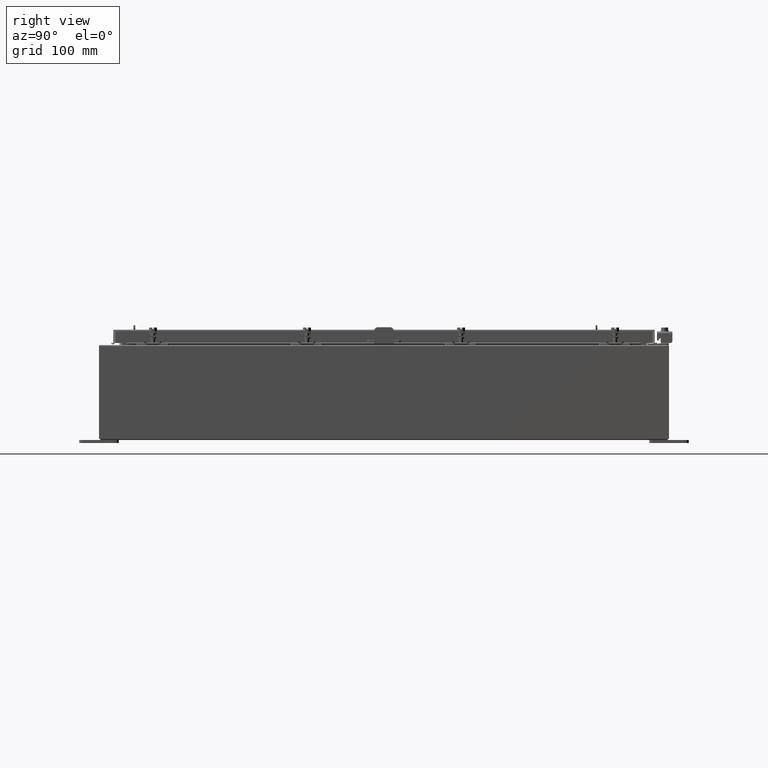
[diagram: clean part render]
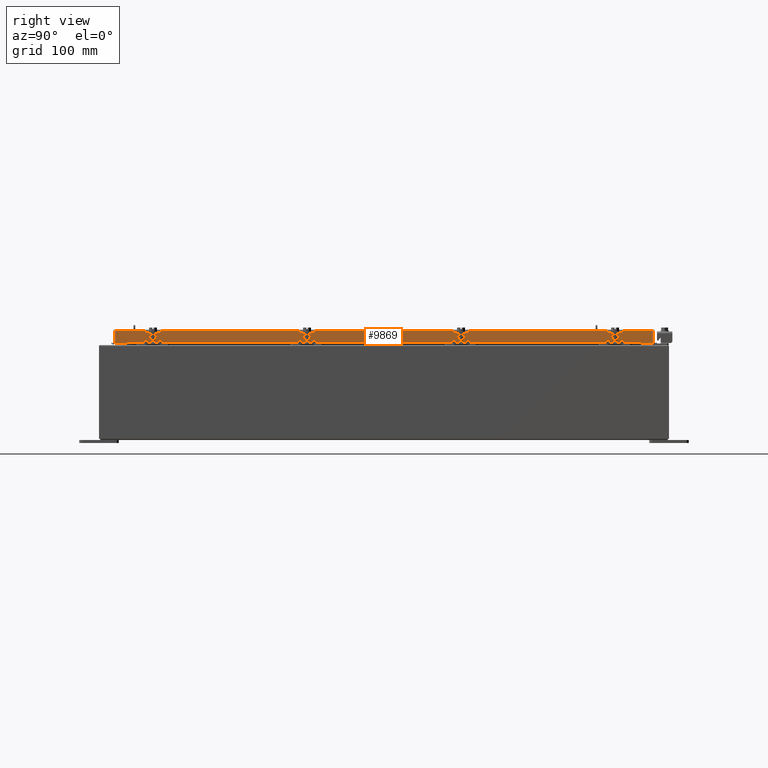
[diagram: same view with one face highlighted and labeled with its STEP entity id]
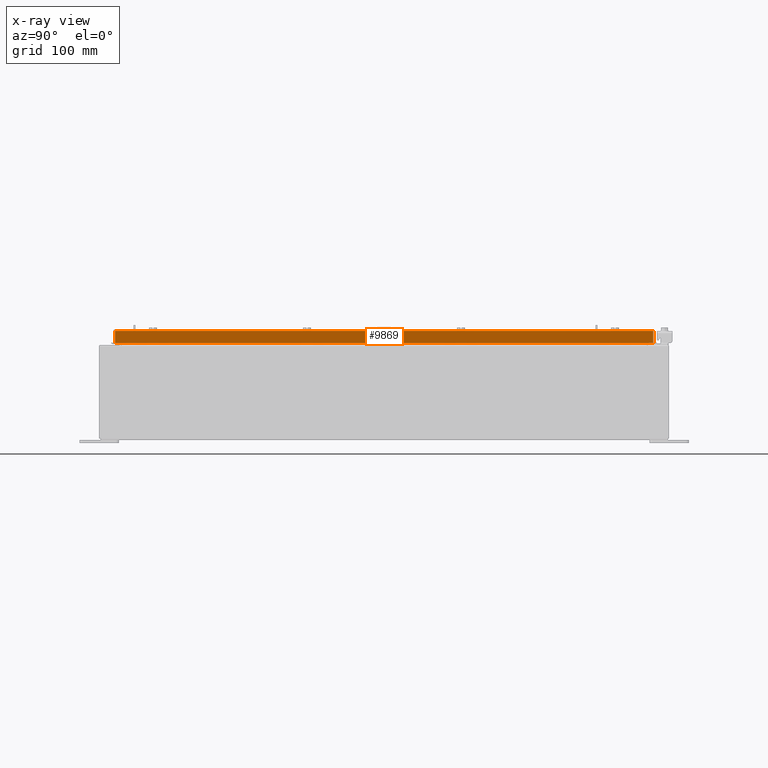
[diagram: x-ray of the same camera — body ghosted, the highlighted face saturated]
A machine part, right view. The second image highlights one B-rep face of the part: STEP entity #9869.
The next image is the same camera in x-ray: the body ghosted, the highlighted face saturated — about 0% of this face is hidden behind the body in this view.
In plain terms, the highlighted planar face has unit normal (1, 0, 0).
Its self-contained STEP definition (entity closure, byte-faithful):
#630 = ORIENTED_EDGE ( 'NONE', *, *, #11105, .F. ) ;
#1027 = DIRECTION ( 'NONE',  ( 0.0000000000000000000, -1.000000000000000000, 0.0000000000000000000 ) ) ;
#1613 = LINE ( 'NONE', #15565, #20156 ) ;
#2675 = EDGE_CURVE ( 'NONE', #3420, #20039, #4122, .T. ) ;
#3420 = VERTEX_POINT ( 'NONE', #18670 ) ;
#3491 = LINE ( 'NONE', #9851, #4059 ) ;
#3676 = CARTESIAN_POINT ( 'NONE',  ( 11.07799999999999800, 0.0000000000000000000, 3.148837674004378400E-014 ) ) ;
#4059 = VECTOR ( 'NONE', #11649, 39.37007874015748100 ) ;
#4122 = LINE ( 'NONE', #6922, #22143 ) ;
#4890 = LINE ( 'NONE', #17631, #14482 ) ;
#5474 = DIRECTION ( 'NONE',  ( 1.000000000000000000, 0.0000000000000000000, 2.818880942772360100E-015 ) ) ;
#5944 = VERTEX_POINT ( 'NONE', #6106 ) ;
#6106 = CARTESIAN_POINT ( 'NONE',  ( 11.07799999999999800, 17.00515786437626500, -0.08770000000000115200 ) ) ;
#6826 = DIRECTION ( 'NONE',  ( -2.818880942772360500E-015, -6.982962677686269100E-015, 1.000000000000000000 ) ) ;
#6922 = CARTESIAN_POINT ( 'NONE',  ( 11.07799999999999900, -17.09400000000000100, -0.8499999999999996400 ) ) ;
#7221 = VECTOR ( 'NONE', #11316, 39.37007874015748100 ) ;
#7290 = ORIENTED_EDGE ( 'NONE', *, *, #13530, .F. ) ;
#7761 = CARTESIAN_POINT ( 'NONE',  ( 11.07799999999999900, -17.00515786437626500, -0.8499999999999996400 ) ) ;
#8265 = CARTESIAN_POINT ( 'NONE',  ( 11.07799999999999200, -16.25515786437626500, -0.8500000000000020900 ) ) ;
#8333 = ORIENTED_EDGE ( 'NONE', *, *, #12193, .T. ) ;
#9007 = ORIENTED_EDGE ( 'NONE', *, *, #12028, .F. ) ;
#9317 = ORIENTED_EDGE ( 'NONE', *, *, #2675, .F. ) ;
#9531 = CARTESIAN_POINT ( 'NONE',  ( 11.07799999999999800, 5.606249421889436000E-018, -0.08770000000000115200 ) ) ;
#9851 = CARTESIAN_POINT ( 'NONE',  ( 11.07799999999999800, -17.00515786437626900, -0.07469999999999978000 ) ) ;
#9869 = ADVANCED_FACE ( 'NONE', ( #14595 ), #14480, .T. ) ;
#10329 = EDGE_CURVE ( 'NONE', #5944, #17744, #21569, .T. ) ;
#11018 = AXIS2_PLACEMENT_3D ( 'NONE', #3676, #5474, #18087 ) ;
#11105 = EDGE_CURVE ( 'NONE', #12124, #13001, #1613, .T. ) ;
#11139 = EDGE_LOOP ( 'NONE', ( #9007, #630, #7290, #9317, #8333, #14766 ) ) ;
#11316 = DIRECTION ( 'NONE',  ( 1.801978295984813200E-031, -1.000000000000000000, -6.392530697705073700E-017 ) ) ;
#11649 = DIRECTION ( 'NONE',  ( -2.818880942772360500E-015, -6.982962677686269100E-015, 1.000000000000000000 ) ) ;
#12028 = EDGE_CURVE ( 'NONE', #13001, #17744, #3491, .T. ) ;
#12124 = VERTEX_POINT ( 'NONE', #8265 ) ;
#12193 = EDGE_CURVE ( 'NONE', #3420, #5944, #4890, .T. ) ;
#12631 = DIRECTION ( 'NONE',  ( 0.0000000000000000000, -1.000000000000000000, 0.0000000000000000000 ) ) ;
#13001 = VERTEX_POINT ( 'NONE', #7761 ) ;
#13530 = EDGE_CURVE ( 'NONE', #20039, #12124, #23136, .T. ) ;
#13865 = CARTESIAN_POINT ( 'NONE',  ( 11.07799999999999200, 16.25515786437627200, -0.8500000000000020900 ) ) ;
#14480 = PLANE ( 'NONE',  #11018 ) ;
#14482 = VECTOR ( 'NONE', #6826, 39.37007874015748100 ) ;
#14595 = FACE_OUTER_BOUND ( 'NONE', #11139, .T. ) ;
#14766 = ORIENTED_EDGE ( 'NONE', *, *, #10329, .T. ) ;
#15565 = CARTESIAN_POINT ( 'NONE',  ( 11.07799999999999900, -17.09400000000000100, -0.8499999999999996400 ) ) ;
#16937 = CARTESIAN_POINT ( 'NONE',  ( 11.07799999999999800, -17.00515786437626900, -0.08770000000000224800 ) ) ;
#17372 = DIRECTION ( 'NONE',  ( 0.0000000000000000000, -1.000000000000000000, 0.0000000000000000000 ) ) ;
#17631 = CARTESIAN_POINT ( 'NONE',  ( 11.07799999999999800, 17.00515786437626900, 1.502347594351463900E-013 ) ) ;
#17744 = VERTEX_POINT ( 'NONE', #16937 ) ;
#17800 = VECTOR ( 'NONE', #12631, 39.37007874015748100 ) ;
#18087 = DIRECTION ( 'NONE',  ( 2.818880942772360100E-015, 0.0000000000000000000, -1.000000000000000000 ) ) ;
#18670 = CARTESIAN_POINT ( 'NONE',  ( 11.07799999999999900, 17.00515786437627600, -0.8499999999999996400 ) ) ;
#19797 = CARTESIAN_POINT ( 'NONE',  ( 11.07799999999999200, 16.25515786437627200, -0.8500000000000020900 ) ) ;
#20039 = VERTEX_POINT ( 'NONE', #13865 ) ;
#20156 = VECTOR ( 'NONE', #17372, 39.37007874015748100 ) ;
#21569 = LINE ( 'NONE', #9531, #7221 ) ;
#22143 = VECTOR ( 'NONE', #1027, 39.37007874015748100 ) ;
#23136 = LINE ( 'NONE', #19797, #17800 ) ;